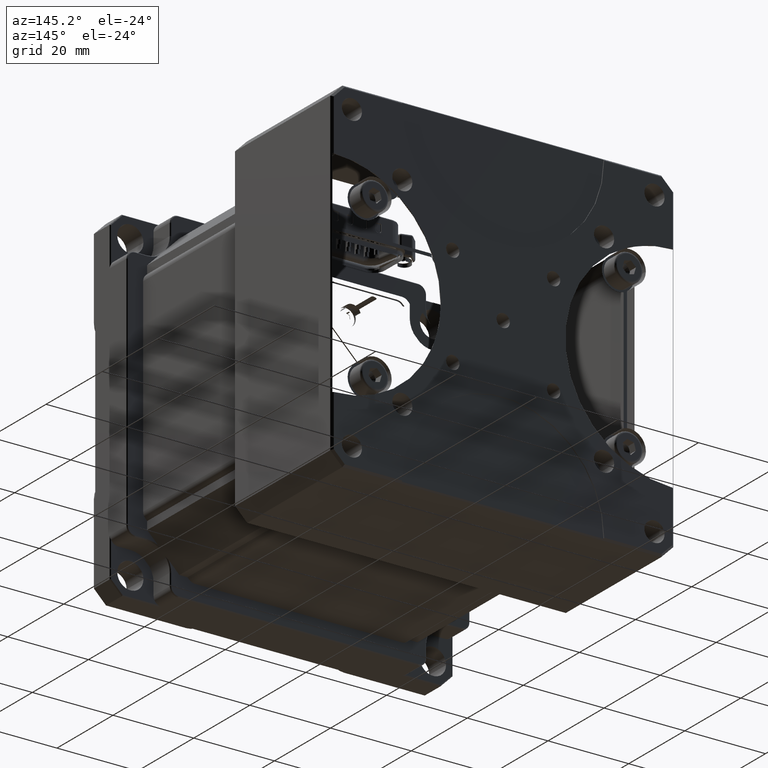
[diagram: clean part render]
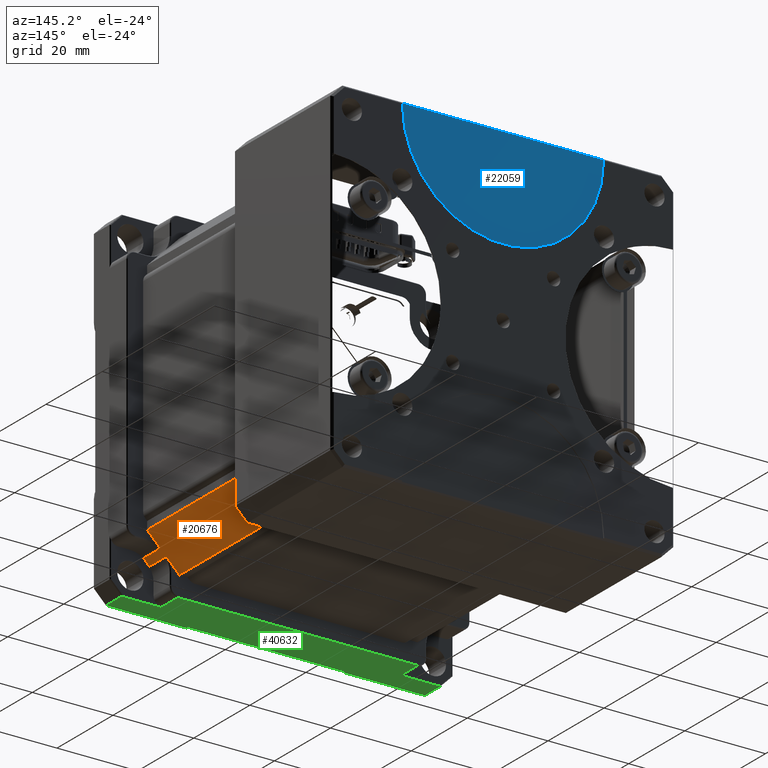
[diagram: same view with three faces highlighted in distinct colors, each labeled with its STEP entity id]
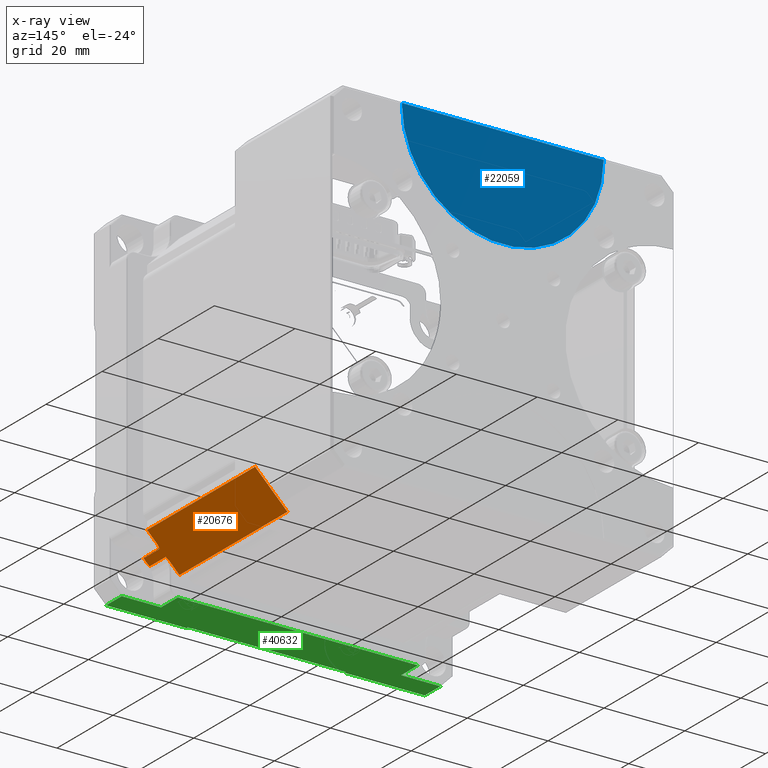
[diagram: x-ray of the same camera — body ghosted, the three highlighted faces saturated]
A machine part, auxiliary view with three faces highlighted in distinct colors.
The next image is the same camera in x-ray (body ghosted, the three faces saturated) — at least one of them is partly hidden behind the body in this view.
Their STEP definitions:

[orange] entity #20676 — the highlighted planar face has unit normal (0.7071, 0, -0.7071).
#147 = EDGE_CURVE ( 'NONE', #18886, #10133, #22584, .T. ) ;
#833 = LINE ( 'NONE', #11884, #23496 ) ;
#1524 = CARTESIAN_POINT ( 'NONE',  ( 122.9456245175246067, 6.000000000000000000, -72.72886898685598567 ) ) ;
#1821 = CARTESIAN_POINT ( 'NONE',  ( 123.6744935043803935, 12.00000000000000000, -72.00000000000000000 ) ) ;
#1958 = CARTESIAN_POINT ( 'NONE',  ( 124.7886045338996013, 11.91660740004084040, -70.88588897048080639 ) ) ;
#2109 = VECTOR ( 'NONE', #24548, 1000.000000000000000 ) ;
#2449 = CARTESIAN_POINT ( 'NONE',  ( 122.3701737583058105, 12.00000000000000000, -73.30431974607459722 ) ) ;
#3025 = ORIENTED_EDGE ( 'NONE', *, *, #12172, .T. ) ;
#3977 = VERTEX_POINT ( 'NONE', #31338 ) ;
#4737 = CARTESIAN_POINT ( 'NONE',  ( 124.9788132504550049, 12.00000000000000000, -70.69568025392550226 ) ) ;
#5281 = ORIENTED_EDGE ( 'NONE', *, *, #147, .F. ) ;
#6762 = ORIENTED_EDGE ( 'NONE', *, *, #42494, .T. ) ;
#6822 = CARTESIAN_POINT ( 'NONE',  ( 122.9456245175246067, 6.000000000000000000, -72.72886898685598567 ) ) ;
#6981 = CARTESIAN_POINT ( 'NONE',  ( 123.6744935043803935, 6.000000000000000000, -72.00000000000000000 ) ) ;
#8437 = ORIENTED_EDGE ( 'NONE', *, *, #39236, .T. ) ;
#8568 = CARTESIAN_POINT ( 'NONE',  ( 119.6744935043804077, -105.5660171779820047, -76.00000000000000000 ) ) ;
#8664 = PLANE ( 'NONE',  #32533 ) ;
#9233 = ORIENTED_EDGE ( 'NONE', *, *, #37678, .F. ) ;
#9564 = CARTESIAN_POINT ( 'NONE',  ( 119.6744935043804077, 50.50000000000000000, -76.00000000000000000 ) ) ;
#10133 = VERTEX_POINT ( 'NONE', #34170 ) ;
#11505 = B_SPLINE_CURVE_WITH_KNOTS ( 'NONE', 3,
 ( #44461, #19981, #23438, #2449 ),
 .UNSPECIFIED., .F., .F.,
 ( 4, 4 ),
 ( 0.01207892164867200094, 0.01291699187047374089 ),
 .UNSPECIFIED. ) ;
#11872 = ORIENTED_EDGE ( 'NONE', *, *, #37500, .F. ) ;
#11884 = CARTESIAN_POINT ( 'NONE',  ( 127.6744935043804219, -105.5660171779820047, -68.00000000000000000 ) ) ;
#12172 = EDGE_CURVE ( 'NONE', #41288, #13844, #44818, .T. ) ;
#12508 = ORIENTED_EDGE ( 'NONE', *, *, #16464, .F. ) ;
#13844 = VERTEX_POINT ( 'NONE', #40110 ) ;
#14347 = CARTESIAN_POINT ( 'NONE',  ( 124.4033624912361944, 11.79999999999999893, -71.27113101314419907 ) ) ;
#14633 = DIRECTION ( 'NONE',  ( 2.498001805406610105E-16, -1.000000000000000000, 1.103725197610289945E-16 ) ) ;
#14919 = FACE_OUTER_BOUND ( 'NONE', #39432, .T. ) ;
#15034 = LINE ( 'NONE', #6981, #2109 ) ;
#16039 = EDGE_CURVE ( 'NONE', #19289, #27790, #31007, .T. ) ;
#16084 = CARTESIAN_POINT ( 'NONE',  ( 124.9788132504550049, 12.00000000000000000, -70.69568025392550226 ) ) ;
#16464 = EDGE_CURVE ( 'NONE', #22867, #27790, #20301, .T. ) ;
#18335 = EDGE_CURVE ( 'NONE', #37579, #10133, #11505, .T. ) ;
#18886 = VERTEX_POINT ( 'NONE', #27011 ) ;
#18970 = CARTESIAN_POINT ( 'NONE',  ( 124.4033624912361944, 6.000000000000000000, -71.27113101314419907 ) ) ;
#19197 = LINE ( 'NONE', #8568, #42476 ) ;
#19289 = VERTEX_POINT ( 'NONE', #16084 ) ;
#19981 = CARTESIAN_POINT ( 'NONE',  ( 122.7507807137004079, 11.84939673248299918, -72.92371279068019874 ) ) ;
#20301 = LINE ( 'NONE', #18970, #28790 ) ;
#20676 = ADVANCED_FACE ( 'NONE', ( #14919 ), #8664, .T. ) ;
#21047 = VECTOR ( 'NONE', #45283, 1000.000000000000000 ) ;
#22492 = DIRECTION ( 'NONE',  ( -3.608224830031755305E-16, 1.000000000000000000, -2.736741535727435062E-16 ) ) ;
#22584 = LINE ( 'NONE', #1821, #39425 ) ;
#22634 = ORIENTED_EDGE ( 'NONE', *, *, #18335, .T. ) ;
#22746 = DIRECTION ( 'NONE',  ( 0.7071067811865470176, 6.162317470933724637E-17, -0.7071067811865480168 ) ) ;
#22867 = VERTEX_POINT ( 'NONE', #41597 ) ;
#23188 = CARTESIAN_POINT ( 'NONE',  ( 124.4033624912361944, 11.79999999999999893, -71.27113101314419907 ) ) ;
#23438 = CARTESIAN_POINT ( 'NONE',  ( 122.5591535725362036, 11.91714618376127888, -73.11533993184420410 ) ) ;
#23496 = VECTOR ( 'NONE', #22492, 1000.000000000000000 ) ;
#24548 = DIRECTION ( 'NONE',  ( -0.7071067811865480168, -2.546805587815949904E-16, -0.7071067811865470176 ) ) ;
#26243 = LINE ( 'NONE', #43796, #37470 ) ;
#27011 = CARTESIAN_POINT ( 'NONE',  ( 119.6744935043804077, 12.00000000000000000, -76.00000000000000000 ) ) ;
#27237 = DIRECTION ( 'NONE',  ( -2.498001805406610105E-16, 1.000000000000000000, -1.103725197610289945E-16 ) ) ;
#27483 = EDGE_CURVE ( 'NONE', #37579, #45664, #34768, .T. ) ;
#27790 = VERTEX_POINT ( 'NONE', #14347 ) ;
#28308 = CARTESIAN_POINT ( 'NONE',  ( 122.9456245175246067, 11.79999999999999893, -72.72886898685588619 ) ) ;
#28790 = VECTOR ( 'NONE', #27237, 1000.000000000000000 ) ;
#29766 = ORIENTED_EDGE ( 'NONE', *, *, #27483, .F. ) ;
#30116 = CARTESIAN_POINT ( 'NONE',  ( 124.5968724341719991, 11.84905857254063832, -71.07762107020839437 ) ) ;
#31007 = B_SPLINE_CURVE_WITH_KNOTS ( 'NONE', 3,
 ( #4737, #1958, #30116, #23188 ),
 .UNSPECIFIED., .F., .F.,
 ( 4, 4 ),
 ( 0.009178623959103569471, 0.01001461882635923915 ),
 .UNSPECIFIED. ) ;
#31338 = CARTESIAN_POINT ( 'NONE',  ( 127.6744935043804219, 12.00000000000000000, -68.00000000000000000 ) ) ;
#32533 = AXIS2_PLACEMENT_3D ( 'NONE', #40082, #22746, #43308 ) ;
#34170 = CARTESIAN_POINT ( 'NONE',  ( 122.3701737583058105, 12.00000000000000000, -73.30431974607459722 ) ) ;
#34768 = LINE ( 'NONE', #6822, #36678 ) ;
#35988 = ORIENTED_EDGE ( 'NONE', *, *, #16039, .T. ) ;
#36678 = VECTOR ( 'NONE', #14633, 1000.000000000000000 ) ;
#37151 = DIRECTION ( 'NONE',  ( 0.7071067811865480168, 2.546805587815949904E-16, 0.7071067811865470176 ) ) ;
#37470 = VECTOR ( 'NONE', #39663, 1000.000000000000000 ) ;
#37500 = EDGE_CURVE ( 'NONE', #19289, #3977, #26243, .T. ) ;
#37579 = VERTEX_POINT ( 'NONE', #28308 ) ;
#37678 = EDGE_CURVE ( 'NONE', #3977, #13844, #833, .T. ) ;
#39236 = EDGE_CURVE ( 'NONE', #22867, #45664, #15034, .T. ) ;
#39425 = VECTOR ( 'NONE', #37151, 1000.000000000000000 ) ;
#39432 = EDGE_LOOP ( 'NONE', ( #3025, #9233, #11872, #35988, #12508, #8437, #29766, #22634, #5281, #6762 ) ) ;
#39663 = DIRECTION ( 'NONE',  ( 0.7071067811865480168, 2.546805587815949904E-16, 0.7071067811865470176 ) ) ;
#40082 = CARTESIAN_POINT ( 'NONE',  ( 127.6744935043804219, -105.5660171779820047, -68.00000000000000000 ) ) ;
#40110 = CARTESIAN_POINT ( 'NONE',  ( 127.6744935043804219, 50.50000000000000000, -68.00000000000000000 ) ) ;
#40210 = DIRECTION ( 'NONE',  ( -3.608224830031755305E-16, 1.000000000000000000, -2.736741535727435062E-16 ) ) ;
#41288 = VERTEX_POINT ( 'NONE', #9564 ) ;
#41597 = CARTESIAN_POINT ( 'NONE',  ( 124.4033624912361944, 6.000000000000000000, -71.27113101314419907 ) ) ;
#42271 = CARTESIAN_POINT ( 'NONE',  ( 129.6744935043803935, 50.50000000000000000, -66.00000000000000000 ) ) ;
#42476 = VECTOR ( 'NONE', #40210, 1000.000000000000000 ) ;
#42494 = EDGE_CURVE ( 'NONE', #18886, #41288, #19197, .T. ) ;
#43308 = DIRECTION ( 'NONE',  ( 0.000000000000000000, -1.000000000000000000, -8.714832943043138341E-17 ) ) ;
#43796 = CARTESIAN_POINT ( 'NONE',  ( 123.6744935043803935, 12.00000000000000000, -72.00000000000000000 ) ) ;
#44461 = CARTESIAN_POINT ( 'NONE',  ( 122.9456245175246067, 11.79999999999999893, -72.72886898685588619 ) ) ;
#44818 = LINE ( 'NONE', #42271, #21047 ) ;
#45283 = DIRECTION ( 'NONE',  ( 0.7071067811865435759, 4.486568743628882715E-16, 0.7071067811865515695 ) ) ;
#45664 = VERTEX_POINT ( 'NONE', #1524 ) ;

[blue] entity #22059 — the highlighted planar face has unit normal (-0, 1, -0).
#570 = VECTOR ( 'NONE', #4718, 1000.000000000000000 ) ;
#2272 = AXIS2_PLACEMENT_3D ( 'NONE', #37311, #37542, #20222 ) ;
#2725 = EDGE_CURVE ( 'NONE', #27082, #21186, #41539, .T. ) ;
#4520 = DIRECTION ( 'NONE',  ( -5.551115123125780730E-16, 1.000000000000000000, -2.736741535727439992E-16 ) ) ;
#4718 = DIRECTION ( 'NONE',  ( -1.000000000000000000, -3.608224830031755305E-16, -5.974065025410860623E-16 ) ) ;
#5452 = EDGE_CURVE ( 'NONE', #14564, #27082, #25100, .T. ) ;
#6385 = DIRECTION ( 'NONE',  ( -1.000000000000000000, -5.551115123125784674E-16, -5.898059818321146093E-16 ) ) ;
#6666 = CARTESIAN_POINT ( 'NONE',  ( 65.17529351718079056, 84.79999999999999716, 3.699999999999905143 ) ) ;
#8673 = CARTESIAN_POINT ( 'NONE',  ( 115.1744935043804077, 84.79999999999999716, 3.499999999999944933 ) ) ;
#10512 = DIRECTION ( 'NONE',  ( 1.000000000000000000, 3.608224830031755305E-16, 0.000000000000000000 ) ) ;
#10970 = DIRECTION ( 'NONE',  ( -1.000000000000000000, -5.551115123125784674E-16, -5.898059818321146093E-16 ) ) ;
#11624 = CARTESIAN_POINT ( 'NONE',  ( 47.67449350438039346, 84.79999999999999716, 3.699999999999890044 ) ) ;
#13483 = ORIENTED_EDGE ( 'NONE', *, *, #27512, .F. ) ;
#14401 = DIRECTION ( 'NONE',  ( -3.608224830031755305E-16, 1.000000000000000000, -2.736741535727435062E-16 ) ) ;
#14564 = VERTEX_POINT ( 'NONE', #30066 ) ;
#15459 = VERTEX_POINT ( 'NONE', #6666 ) ;
#15707 = AXIS2_PLACEMENT_3D ( 'NONE', #23938, #38036, #6385 ) ;
#16448 = CARTESIAN_POINT ( 'NONE',  ( 65.17449350438039346, 84.79999999999999716, 3.499999999999910294 ) ) ;
#19696 = ORIENTED_EDGE ( 'NONE', *, *, #23279, .T. ) ;
#19850 = CIRCLE ( 'NONE', #33852, 24.99999999999999289 ) ;
#20222 = DIRECTION ( 'NONE',  ( -1.000000000000000000, -5.551115123125784674E-16, -5.898059818321146093E-16 ) ) ;
#21186 = VERTEX_POINT ( 'NONE', #16448 ) ;
#21346 = FACE_OUTER_BOUND ( 'NONE', #23797, .T. ) ;
#22059 = ADVANCED_FACE ( 'NONE', ( #21346 ), #28732, .T. ) ;
#23279 = EDGE_CURVE ( 'NONE', #21186, #15459, #19850, .T. ) ;
#23797 = EDGE_LOOP ( 'NONE', ( #28749, #42469, #19696, #13483 ) ) ;
#23938 = CARTESIAN_POINT ( 'NONE',  ( 90.17449350438039346, 84.79999999999999716, 3.499999999999924949 ) ) ;
#25100 = CIRCLE ( 'NONE', #2272, 24.99999999999999289 ) ;
#27082 = VERTEX_POINT ( 'NONE', #8673 ) ;
#27512 = EDGE_CURVE ( 'NONE', #14564, #15459, #43047, .T. ) ;
#28732 = PLANE ( 'NONE',  #29334 ) ;
#28749 = ORIENTED_EDGE ( 'NONE', *, *, #5452, .T. ) ;
#29334 = AXIS2_PLACEMENT_3D ( 'NONE', #32187, #14401, #10512 ) ;
#30066 = CARTESIAN_POINT ( 'NONE',  ( 115.1736934915799964, 84.79999999999999716, 3.699999999999934897 ) ) ;
#32187 = CARTESIAN_POINT ( 'NONE',  ( 90.17449350438039346, 84.79999999999999716, 3.499999999999924949 ) ) ;
#33852 = AXIS2_PLACEMENT_3D ( 'NONE', #36358, #4520, #10970 ) ;
#36358 = CARTESIAN_POINT ( 'NONE',  ( 90.17449350438039346, 84.79999999999999716, 3.499999999999924949 ) ) ;
#37311 = CARTESIAN_POINT ( 'NONE',  ( 90.17449350438039346, 84.79999999999999716, 3.499999999999924949 ) ) ;
#37542 = DIRECTION ( 'NONE',  ( -5.551115123125780730E-16, 1.000000000000000000, -2.736741535727439992E-16 ) ) ;
#38036 = DIRECTION ( 'NONE',  ( -5.551115123125780730E-16, 1.000000000000000000, -2.736741535727439992E-16 ) ) ;
#41539 = CIRCLE ( 'NONE', #15707, 24.99999999999999289 ) ;
#42469 = ORIENTED_EDGE ( 'NONE', *, *, #2725, .T. ) ;
#43047 = LINE ( 'NONE', #11624, #570 ) ;

[green] entity #40632 — the highlighted planar face has unit normal (0, 0, 1).
#628 = ORIENTED_EDGE ( 'NONE', *, *, #27937, .T. ) ;
#757 = VERTEX_POINT ( 'NONE', #1031 ) ;
#974 = LINE ( 'NONE', #39528, #8649 ) ;
#1031 = CARTESIAN_POINT ( 'NONE',  ( 60.42449350438040057, 11.79999999999999893, -81.00000000000000000 ) ) ;
#1296 = VERTEX_POINT ( 'NONE', #22106 ) ;
#1759 = ORIENTED_EDGE ( 'NONE', *, *, #32551, .T. ) ;
#1866 = VERTEX_POINT ( 'NONE', #5428 ) ;
#2024 = ORIENTED_EDGE ( 'NONE', *, *, #27831, .T. ) ;
#2637 = EDGE_CURVE ( 'NONE', #29530, #14298, #41507, .T. ) ;
#3233 = CARTESIAN_POINT ( 'NONE',  ( 109.7455613162457979, 0.7000000000000329292, -81.00000000000000000 ) ) ;
#3480 = DIRECTION ( 'NONE',  ( 2.498001805406610105E-16, -1.000000000000000000, 1.103725197610289945E-16 ) ) ;
#4200 = CARTESIAN_POINT ( 'NONE',  ( 132.6744935043803935, 5.799999999999999822, -81.00000000000000000 ) ) ;
#5057 = CARTESIAN_POINT ( 'NONE',  ( 50.67449350438040057, 0.1999999999999975131, -81.00000000000000000 ) ) ;
#5176 = VERTEX_POINT ( 'NONE', #42420 ) ;
#5428 = CARTESIAN_POINT ( 'NONE',  ( 129.6744935043803935, 5.799999999999999822, -81.00000000000000000 ) ) ;
#5817 = DIRECTION ( 'NONE',  ( 3.861978163544035151E-16, 1.103725197610289945E-16, 1.000000000000000000 ) ) ;
#5926 = VECTOR ( 'NONE', #16699, 1000.000000000000000 ) ;
#6888 = CARTESIAN_POINT ( 'NONE',  ( 50.67449350438040057, 12.00000000000000000, -81.00000000000000000 ) ) ;
#7068 = VERTEX_POINT ( 'NONE', #5057 ) ;
#7635 = EDGE_LOOP ( 'NONE', ( #26263, #32641, #9720, #2024, #16564, #1759, #14296, #628, #36740, #17947, #33196, #15455 ) ) ;
#7928 = VECTOR ( 'NONE', #22414, 1000.000000000000000 ) ;
#8649 = VECTOR ( 'NONE', #43433, 1000.000000000000000 ) ;
#9473 = VERTEX_POINT ( 'NONE', #10700 ) ;
#9497 = EDGE_CURVE ( 'NONE', #14243, #21785, #13946, .T. ) ;
#9501 = PLANE ( 'NONE',  #25454 ) ;
#9508 = DIRECTION ( 'NONE',  ( -1.000000000000000000, -2.498001805406600244E-16, 3.861978163544035151E-16 ) ) ;
#9569 = VECTOR ( 'NONE', #9508, 1000.000000000000000 ) ;
#9583 = VECTOR ( 'NONE', #34364, 1000.000000000000000 ) ;
#9720 = ORIENTED_EDGE ( 'NONE', *, *, #32289, .T. ) ;
#9795 = LINE ( 'NONE', #33805, #5926 ) ;
#9844 = VECTOR ( 'NONE', #11174, 1000.000000000000000 ) ;
#10700 = CARTESIAN_POINT ( 'NONE',  ( 60.42449350438040057, 5.799999999999999822, -81.00000000000000000 ) ) ;
#10941 = VECTOR ( 'NONE', #36602, 1000.000000000000000 ) ;
#11130 = VECTOR ( 'NONE', #28155, 1000.000000000000000 ) ;
#11174 = DIRECTION ( 'NONE',  ( -1.000000000000000000, -2.498001805406600244E-16, 3.861978163544035151E-16 ) ) ;
#12326 = VECTOR ( 'NONE', #3480, 1000.000000000000000 ) ;
#13255 = CARTESIAN_POINT ( 'NONE',  ( 129.6744935043803935, 0.2000000000000100031, -81.00000000000000000 ) ) ;
#13430 = FACE_OUTER_BOUND ( 'NONE', #7635, .T. ) ;
#13504 = VECTOR ( 'NONE', #30429, 1000.000000000000000 ) ;
#13663 = CARTESIAN_POINT ( 'NONE',  ( 70.60342569251490374, 0.7000000000000239364, -81.00000000000000000 ) ) ;
#13816 = LINE ( 'NONE', #16591, #11130 ) ;
#13946 = LINE ( 'NONE', #28711, #9844 ) ;
#14104 = CARTESIAN_POINT ( 'NONE',  ( 119.9244935043804077, 12.00000000000000000, -81.00000000000000000 ) ) ;
#14243 = VERTEX_POINT ( 'NONE', #13255 ) ;
#14296 = ORIENTED_EDGE ( 'NONE', *, *, #36985, .T. ) ;
#14298 = VERTEX_POINT ( 'NONE', #17401 ) ;
#14310 = LINE ( 'NONE', #14104, #12326 ) ;
#15122 = CARTESIAN_POINT ( 'NONE',  ( 129.6744935043803935, 12.00000000000000000, -81.00000000000000000 ) ) ;
#15455 = ORIENTED_EDGE ( 'NONE', *, *, #23808, .T. ) ;
#16564 = ORIENTED_EDGE ( 'NONE', *, *, #33273, .T. ) ;
#16591 = CARTESIAN_POINT ( 'NONE',  ( 60.42449350438040057, 12.00000000000000000, -81.00000000000000000 ) ) ;
#16699 = DIRECTION ( 'NONE',  ( 1.000000000000000000, 2.498001805406600244E-16, -3.861978163544035151E-16 ) ) ;
#17401 = CARTESIAN_POINT ( 'NONE',  ( 70.60342569251490374, 0.2000000000000025091, -81.00000000000000000 ) ) ;
#17947 = ORIENTED_EDGE ( 'NONE', *, *, #9497, .T. ) ;
#18066 = VERTEX_POINT ( 'NONE', #3233 ) ;
#20579 = DIRECTION ( 'NONE',  ( 1.000000000000000000, 0.000000000000000000, -3.861978163544035151E-16 ) ) ;
#21785 = VERTEX_POINT ( 'NONE', #29917 ) ;
#22106 = CARTESIAN_POINT ( 'NONE',  ( 50.67449350438040057, 5.799999999999999822, -81.00000000000000000 ) ) ;
#22414 = DIRECTION ( 'NONE',  ( 1.000000000000000000, 2.498001805406600244E-16, -3.861978163544035151E-16 ) ) ;
#23808 = EDGE_CURVE ( 'NONE', #18066, #29530, #24280, .T. ) ;
#24280 = LINE ( 'NONE', #41605, #9569 ) ;
#25454 = AXIS2_PLACEMENT_3D ( 'NONE', #27965, #5817, #20579 ) ;
#25601 = EDGE_CURVE ( 'NONE', #21785, #18066, #34874, .T. ) ;
#26263 = ORIENTED_EDGE ( 'NONE', *, *, #2637, .T. ) ;
#27395 = CARTESIAN_POINT ( 'NONE',  ( 50.67449350438040057, 0.1999999999999975131, -81.00000000000000000 ) ) ;
#27831 = EDGE_CURVE ( 'NONE', #1296, #9473, #29586, .T. ) ;
#27834 = LINE ( 'NONE', #27395, #36795 ) ;
#27937 = EDGE_CURVE ( 'NONE', #43474, #1866, #974, .T. ) ;
#27965 = CARTESIAN_POINT ( 'NONE',  ( 132.6744935043803935, 12.00000000000000000, -81.00000000000000000 ) ) ;
#28155 = DIRECTION ( 'NONE',  ( -2.498001805406610105E-16, 1.000000000000000000, -1.103725197610289945E-16 ) ) ;
#28172 = CARTESIAN_POINT ( 'NONE',  ( 109.7455613162457979, 12.00000000000000000, -81.00000000000000000 ) ) ;
#28711 = CARTESIAN_POINT ( 'NONE',  ( 109.7455613162457979, 0.2000000000000050071, -81.00000000000000000 ) ) ;
#29530 = VERTEX_POINT ( 'NONE', #13663 ) ;
#29586 = LINE ( 'NONE', #4200, #7928 ) ;
#29917 = CARTESIAN_POINT ( 'NONE',  ( 109.7455613162457979, 0.2000000000000050071, -81.00000000000000000 ) ) ;
#30429 = DIRECTION ( 'NONE',  ( 2.498001805406610105E-16, -1.000000000000000000, 1.103725197610289945E-16 ) ) ;
#32071 = DIRECTION ( 'NONE',  ( -2.498001805406610105E-16, 1.000000000000000000, -1.103725197610289945E-16 ) ) ;
#32289 = EDGE_CURVE ( 'NONE', #7068, #1296, #38550, .T. ) ;
#32551 = EDGE_CURVE ( 'NONE', #757, #5176, #9795, .T. ) ;
#32641 = ORIENTED_EDGE ( 'NONE', *, *, #38702, .T. ) ;
#33196 = ORIENTED_EDGE ( 'NONE', *, *, #25601, .T. ) ;
#33273 = EDGE_CURVE ( 'NONE', #9473, #757, #13816, .T. ) ;
#33805 = CARTESIAN_POINT ( 'NONE',  ( 132.6744935043803935, 11.79999999999999893, -81.00000000000000000 ) ) ;
#34364 = DIRECTION ( 'NONE',  ( -2.498001805406610105E-16, 1.000000000000000000, -1.103725197610289945E-16 ) ) ;
#34874 = LINE ( 'NONE', #28172, #43613 ) ;
#35846 = CARTESIAN_POINT ( 'NONE',  ( 119.9244935043804077, 5.799999999999999822, -81.00000000000000000 ) ) ;
#36159 = LINE ( 'NONE', #15122, #10941 ) ;
#36602 = DIRECTION ( 'NONE',  ( 2.498001805406610105E-16, -1.000000000000000000, 1.103725197610289945E-16 ) ) ;
#36740 = ORIENTED_EDGE ( 'NONE', *, *, #45637, .T. ) ;
#36795 = VECTOR ( 'NONE', #41481, 1000.000000000000000 ) ;
#36985 = EDGE_CURVE ( 'NONE', #5176, #43474, #14310, .T. ) ;
#38267 = CARTESIAN_POINT ( 'NONE',  ( 70.60342569251490374, 12.00000000000000000, -81.00000000000000000 ) ) ;
#38550 = LINE ( 'NONE', #6888, #9583 ) ;
#38702 = EDGE_CURVE ( 'NONE', #14298, #7068, #27834, .T. ) ;
#39528 = CARTESIAN_POINT ( 'NONE',  ( 129.6744935043803935, 5.799999999999999822, -81.00000000000000000 ) ) ;
#40632 = ADVANCED_FACE ( 'NONE', ( #13430 ), #9501, .F. ) ;
#41481 = DIRECTION ( 'NONE',  ( -1.000000000000000000, -2.498001805406600244E-16, 3.861978163544035151E-16 ) ) ;
#41507 = LINE ( 'NONE', #38267, #13504 ) ;
#41605 = CARTESIAN_POINT ( 'NONE',  ( 132.6744935043803935, 0.7000000000000390354, -81.00000000000000000 ) ) ;
#42420 = CARTESIAN_POINT ( 'NONE',  ( 119.9244935043804077, 11.79999999999999893, -81.00000000000000000 ) ) ;
#43433 = DIRECTION ( 'NONE',  ( 1.000000000000000000, 2.498001805406600244E-16, -3.861978163544035151E-16 ) ) ;
#43474 = VERTEX_POINT ( 'NONE', #35846 ) ;
#43613 = VECTOR ( 'NONE', #32071, 1000.000000000000000 ) ;
#45637 = EDGE_CURVE ( 'NONE', #1866, #14243, #36159, .T. ) ;